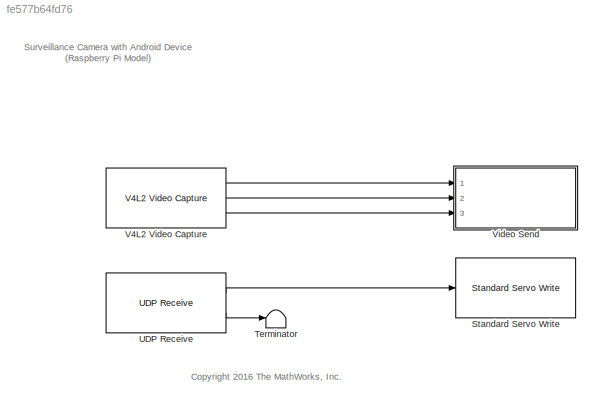
MODEL slx_fe577b64fd76
KIND model
CONFIG AbsTol = auto
CONFIG EnableMultiTasking = on
CONFIG FixedStep = auto
CONFIG MaxStep = auto
CONFIG MinStep = auto
CONFIG RelTol = 1e-3
CONFIG SampleTimeConstraint = Unconstrained
CONFIG Solver = FixedStepAuto
CONFIG SolverName = FixedStepAuto
CONFIG StartTime = 0.0
CONFIG StopTime = inf
BLOCK [Reference] Standard Servo Write  REF=raspberrypilib/Standard Servo Write
  Ports = [1]
  SourceBlock = raspberrypilib/Standard Servo Write
  SourceProductBaseCode = RASPPI
  SourceProductName = Simulink Support Package for Raspberry Pi Hardware
  SourceType = raspi.internal.ServoBlock
BLOCK [Terminator] Terminator
BLOCK [Reference] UDP Receive  REF=embdlinuxlib/UDP Receive
  Ports = [0, 2]
  SourceBlock = embdlinuxlib/UDP Receive
  SourceProductBaseCode = RASPPI
  SourceProductName = Simulink Support Package for Raspberry Pi Hardware
  SourceType = UDP Receive
BLOCK [Reference] V4L2 Video Capture  REF=embdlinuxlib/V4L2 Video Capture
  Ports = [0, 3]
  SourceBlock = embdlinuxlib/V4L2 Video Capture
  SourceProductBaseCode = RASPPI
  SourceProductName = Simulink Support Package for Raspberry Pi Hardware
  SourceType = V4L2 Video Capture
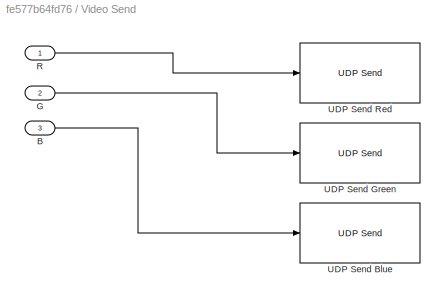
BLOCK [SubSystem] Video Send
  Ports = [3]
  RequestExecContextInheritance = off
  TreatAsAtomicUnit = on
BLOCK [Inport] Video Send/B
  IconDisplay = Port number
  Port = 3
BLOCK [Inport] Video Send/G
  IconDisplay = Port number
  Port = 2
BLOCK [Inport] Video Send/R
  IconDisplay = Port number
BLOCK [Reference] Video Send/UDP Send Blue  REF=embdlinuxlib/UDP Send
  Ports = [1]
  SourceBlock = embdlinuxlib/UDP Send
  SourceProductBaseCode = RASPPI
  SourceProductName = Simulink Support Package for Raspberry Pi Hardware
  SourceType = UDP Send
BLOCK [Reference] Video Send/UDP Send Green  REF=embdlinuxlib/UDP Send
  Ports = [1]
  SourceBlock = embdlinuxlib/UDP Send
  SourceProductBaseCode = RASPPI
  SourceProductName = Simulink Support Package for Raspberry Pi Hardware
  SourceType = UDP Send
BLOCK [Reference] Video Send/UDP Send Red  REF=embdlinuxlib/UDP Send
  Ports = [1]
  SourceBlock = embdlinuxlib/UDP Send
  SourceProductBaseCode = RASPPI
  SourceProductName = Simulink Support Package for Raspberry Pi Hardware
  SourceType = UDP Send
ANNOTATION (root): <copyright redacted>
ANNOTATION (root): Surveillance Camera with Android Device (Raspberry Pi Model)
LINE UDP Receive:1 -> Standard Servo Write:1
LINE UDP Receive:2 -> Terminator:1
LINE V4L2 Video Capture:1 -> Video Send:1
LINE V4L2 Video Capture:2 -> Video Send:2
LINE V4L2 Video Capture:3 -> Video Send:3
LINE Video Send/B:1 -> Video Send/UDP Send Blue:1
LINE Video Send/G:1 -> Video Send/UDP Send Green:1
LINE Video Send/R:1 -> Video Send/UDP Send Red:1
